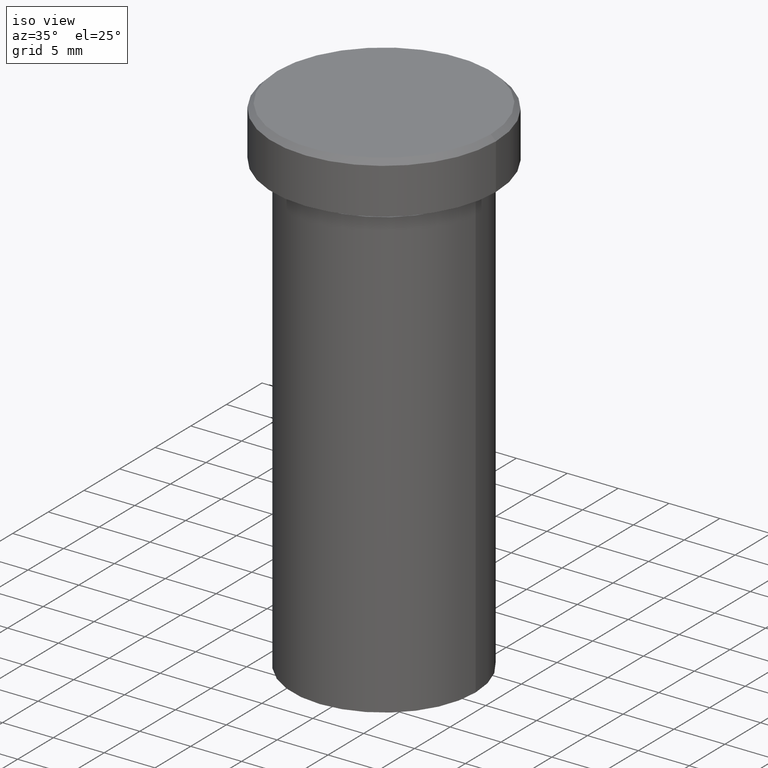
[diagram: clean part render]
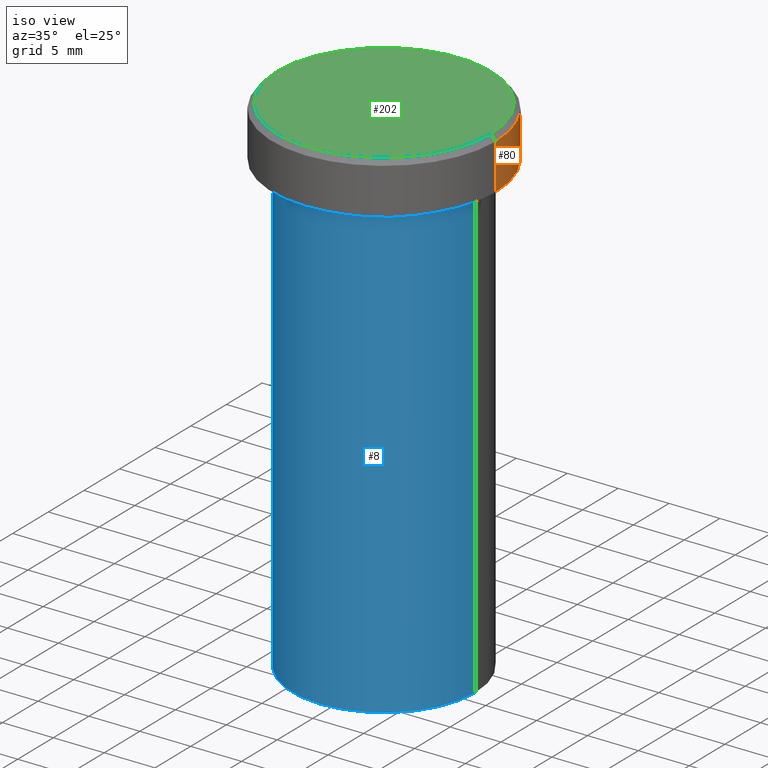
[diagram: same view with three faces highlighted in distinct colors, each labeled with its STEP entity id]
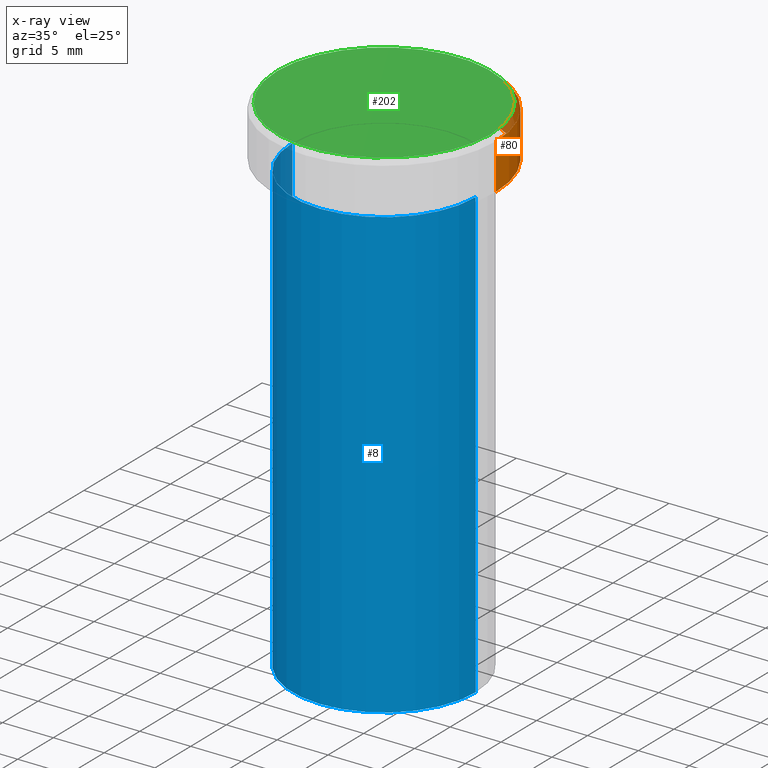
[diagram: x-ray of the same camera — body ghosted, the three highlighted faces saturated]
A machine part, iso view with three faces highlighted in distinct colors.
The next image is the same camera in x-ray (body ghosted, the three faces saturated) — at least one of them is partly hidden behind the body in this view.
Their STEP definitions:

[orange] entity #80 — the highlighted cylindrical surface (partial cylindrical patch) has radius 11 mm, axis along (-0, -0, 1).
#18 = CARTESIAN_POINT ( 'NONE',  ( 0.000000000000000000, 0.000000000000000000, 0.000000000000000000 ) ) ;
#20 = DIRECTION ( 'NONE',  ( -0.000000000000000000, -0.000000000000000000, 1.000000000000000000 ) ) ;
#29 = CARTESIAN_POINT ( 'NONE',  ( 0.000000000000000000, 0.000000000000000000, -5.000000000000000000 ) ) ;
#30 = ORIENTED_EDGE ( 'NONE', *, *, #350, .T. ) ;
#33 = VERTEX_POINT ( 'NONE', #257 ) ;
#49 = FACE_OUTER_BOUND ( 'NONE', #392, .T. ) ;
#80 = ADVANCED_FACE ( 'NONE', ( #49 ), #173, .T. ) ;
#85 = EDGE_CURVE ( 'NONE', #222, #33, #332, .T. ) ;
#87 = CARTESIAN_POINT ( 'NONE',  ( 11.00000000000000000, 0.000000000000000000, -5.000000000000000000 ) ) ;
#90 = DIRECTION ( 'NONE',  ( 1.000000000000000000, 0.000000000000000000, 0.000000000000000000 ) ) ;
#94 = CIRCLE ( 'NONE', #304, 11.00000000000000000 ) ;
#140 = EDGE_CURVE ( 'NONE', #308, #33, #94, .T. ) ;
#145 = DIRECTION ( 'NONE',  ( -0.000000000000000000, -0.000000000000000000, 1.000000000000000000 ) ) ;
#173 = CYLINDRICAL_SURFACE ( 'NONE', #217, 11.00000000000000000 ) ;
#182 = LINE ( 'NONE', #185, #353 ) ;
#185 = CARTESIAN_POINT ( 'NONE',  ( -11.00000000000000000, 1.347111479062088405E-15, 0.000000000000000000 ) ) ;
#217 = AXIS2_PLACEMENT_3D ( 'NONE', #18, #20, #225 ) ;
#222 = VERTEX_POINT ( 'NONE', #87 ) ;
#225 = DIRECTION ( 'NONE',  ( 1.000000000000000000, 0.000000000000000000, 0.000000000000000000 ) ) ;
#233 = DIRECTION ( 'NONE',  ( -0.000000000000000000, -0.000000000000000000, 1.000000000000000000 ) ) ;
#237 = CIRCLE ( 'NONE', #246, 11.00000000000000000 ) ;
#244 = CARTESIAN_POINT ( 'NONE',  ( -11.00000000000000000, 1.347111479062088405E-15, -0.5000000000000073275 ) ) ;
#246 = AXIS2_PLACEMENT_3D ( 'NONE', #29, #145, #90 ) ;
#257 = CARTESIAN_POINT ( 'NONE',  ( 11.00000000000000000, 0.000000000000000000, -0.5000000000000073275 ) ) ;
#262 = DIRECTION ( 'NONE',  ( 1.000000000000000000, 0.000000000000000000, 0.000000000000000000 ) ) ;
#291 = VECTOR ( 'NONE', #361, 1000.000000000000000 ) ;
#296 = CARTESIAN_POINT ( 'NONE',  ( 11.00000000000000000, 0.000000000000000000, 0.000000000000000000 ) ) ;
#304 = AXIS2_PLACEMENT_3D ( 'NONE', #376, #311, #262 ) ;
#308 = VERTEX_POINT ( 'NONE', #244 ) ;
#311 = DIRECTION ( 'NONE',  ( 0.000000000000000000, 0.000000000000000000, -1.000000000000000000 ) ) ;
#317 = ORIENTED_EDGE ( 'NONE', *, *, #140, .T. ) ;
#318 = CARTESIAN_POINT ( 'NONE',  ( -11.00000000000000000, 1.347111479062088405E-15, -5.000000000000000000 ) ) ;
#324 = EDGE_CURVE ( 'NONE', #375, #308, #182, .T. ) ;
#332 = LINE ( 'NONE', #296, #291 ) ;
#339 = ORIENTED_EDGE ( 'NONE', *, *, #85, .F. ) ;
#350 = EDGE_CURVE ( 'NONE', #222, #375, #237, .T. ) ;
#353 = VECTOR ( 'NONE', #233, 1000.000000000000000 ) ;
#357 = ORIENTED_EDGE ( 'NONE', *, *, #324, .T. ) ;
#361 = DIRECTION ( 'NONE',  ( -0.000000000000000000, -0.000000000000000000, 1.000000000000000000 ) ) ;
#375 = VERTEX_POINT ( 'NONE', #318 ) ;
#376 = CARTESIAN_POINT ( 'NONE',  ( 0.000000000000000000, 0.000000000000000000, -0.5000000000000073275 ) ) ;
#392 = EDGE_LOOP ( 'NONE', ( #30, #357, #317, #339 ) ) ;

[blue] entity #8 — the highlighted cylindrical surface (partial cylindrical patch) has radius 9 mm, axis along (-0, -0, 1).
#4 = AXIS2_PLACEMENT_3D ( 'NONE', #290, #17, #165 ) ;
#5 = CARTESIAN_POINT ( 'NONE',  ( -9.000000000000000000, 1.102182119232617714E-15, 0.000000000000000000 ) ) ;
#8 = ADVANCED_FACE ( 'NONE', ( #398 ), #195, .T. ) ;
#9 = CIRCLE ( 'NONE', #394, 9.000000000000000000 ) ;
#17 = DIRECTION ( 'NONE',  ( -0.000000000000000000, -0.000000000000000000, 1.000000000000000000 ) ) ;
#26 = VECTOR ( 'NONE', #340, 1000.000000000000000 ) ;
#41 = EDGE_LOOP ( 'NONE', ( #61, #243, #355, #352 ) ) ;
#52 = CARTESIAN_POINT ( 'NONE',  ( -9.000000000000000000, 1.102182119232617714E-15, -50.00000000000000000 ) ) ;
#61 = ORIENTED_EDGE ( 'NONE', *, *, #256, .F. ) ;
#68 = VECTOR ( 'NONE', #116, 1000.000000000000000 ) ;
#72 = VERTEX_POINT ( 'NONE', #52 ) ;
#95 = CARTESIAN_POINT ( 'NONE',  ( -9.000000000000000000, 1.102182119232617714E-15, -6.000000000000000000 ) ) ;
#116 = DIRECTION ( 'NONE',  ( -0.000000000000000000, -0.000000000000000000, 1.000000000000000000 ) ) ;
#125 = LINE ( 'NONE', #5, #68 ) ;
#148 = CARTESIAN_POINT ( 'NONE',  ( 0.000000000000000000, 0.000000000000000000, -50.00000000000000000 ) ) ;
#152 = DIRECTION ( 'NONE',  ( -0.000000000000000000, -0.000000000000000000, 1.000000000000000000 ) ) ;
#161 = CARTESIAN_POINT ( 'NONE',  ( 9.000000000000000000, 0.000000000000000000, -6.000000000000000000 ) ) ;
#165 = DIRECTION ( 'NONE',  ( 1.000000000000000000, 0.000000000000000000, 0.000000000000000000 ) ) ;
#195 = CYLINDRICAL_SURFACE ( 'NONE', #4, 9.000000000000000000 ) ;
#211 = CARTESIAN_POINT ( 'NONE',  ( 9.000000000000000000, 0.000000000000000000, 0.000000000000000000 ) ) ;
#214 = VERTEX_POINT ( 'NONE', #95 ) ;
#230 = AXIS2_PLACEMENT_3D ( 'NONE', #276, #235, #378 ) ;
#232 = EDGE_CURVE ( 'NONE', #72, #283, #9, .T. ) ;
#235 = DIRECTION ( 'NONE',  ( -0.000000000000000000, -0.000000000000000000, 1.000000000000000000 ) ) ;
#240 = CARTESIAN_POINT ( 'NONE',  ( 9.000000000000000000, 0.000000000000000000, -50.00000000000000000 ) ) ;
#243 = ORIENTED_EDGE ( 'NONE', *, *, #232, .T. ) ;
#250 = EDGE_CURVE ( 'NONE', #214, #388, #390, .T. ) ;
#256 = EDGE_CURVE ( 'NONE', #72, #214, #125, .T. ) ;
#276 = CARTESIAN_POINT ( 'NONE',  ( 0.000000000000000000, 0.000000000000000000, -6.000000000000000000 ) ) ;
#283 = VERTEX_POINT ( 'NONE', #240 ) ;
#290 = CARTESIAN_POINT ( 'NONE',  ( 0.000000000000000000, 0.000000000000000000, 0.000000000000000000 ) ) ;
#295 = EDGE_CURVE ( 'NONE', #283, #388, #384, .T. ) ;
#338 = DIRECTION ( 'NONE',  ( 1.000000000000000000, 0.000000000000000000, 0.000000000000000000 ) ) ;
#340 = DIRECTION ( 'NONE',  ( -0.000000000000000000, -0.000000000000000000, 1.000000000000000000 ) ) ;
#352 = ORIENTED_EDGE ( 'NONE', *, *, #250, .F. ) ;
#355 = ORIENTED_EDGE ( 'NONE', *, *, #295, .T. ) ;
#378 = DIRECTION ( 'NONE',  ( 1.000000000000000000, 0.000000000000000000, 0.000000000000000000 ) ) ;
#384 = LINE ( 'NONE', #211, #26 ) ;
#388 = VERTEX_POINT ( 'NONE', #161 ) ;
#390 = CIRCLE ( 'NONE', #230, 9.000000000000000000 ) ;
#394 = AXIS2_PLACEMENT_3D ( 'NONE', #148, #152, #338 ) ;
#398 = FACE_OUTER_BOUND ( 'NONE', #41, .T. ) ;

[green] entity #202 — the highlighted planar face has unit normal (0, -0, 1).
#14 = AXIS2_PLACEMENT_3D ( 'NONE', #205, #86, #337 ) ;
#59 = DIRECTION ( 'NONE',  ( -0.000000000000000000, -0.000000000000000000, 1.000000000000000000 ) ) ;
#86 = DIRECTION ( 'NONE',  ( -0.000000000000000000, -0.000000000000000000, 1.000000000000000000 ) ) ;
#122 = CARTESIAN_POINT ( 'NONE',  ( 10.49999999999999467, 1.316495309083404420E-15, 0.000000000000000000 ) ) ;
#142 = CARTESIAN_POINT ( 'NONE',  ( 0.000000000000000000, 0.000000000000000000, 0.000000000000000000 ) ) ;
#143 = CIRCLE ( 'NONE', #14, 10.49999999999999467 ) ;
#184 = DIRECTION ( 'NONE',  ( 1.000000000000000000, 0.000000000000000000, 0.000000000000000000 ) ) ;
#186 = EDGE_CURVE ( 'NONE', #323, #351, #143, .T. ) ;
#192 = EDGE_CURVE ( 'NONE', #351, #323, #363, .T. ) ;
#202 = ADVANCED_FACE ( 'NONE', ( #266 ), #210, .T. ) ;
#205 = CARTESIAN_POINT ( 'NONE',  ( 0.000000000000000000, 0.000000000000000000, 0.000000000000000000 ) ) ;
#210 = PLANE ( 'NONE',  #400 ) ;
#259 = AXIS2_PLACEMENT_3D ( 'NONE', #142, #59, #184 ) ;
#266 = FACE_OUTER_BOUND ( 'NONE', #312, .T. ) ;
#280 = ORIENTED_EDGE ( 'NONE', *, *, #186, .T. ) ;
#306 = DIRECTION ( 'NONE',  ( 1.000000000000000000, 0.000000000000000000, 0.000000000000000000 ) ) ;
#309 = CARTESIAN_POINT ( 'NONE',  ( 0.000000000000000000, 0.000000000000000000, 0.000000000000000000 ) ) ;
#312 = EDGE_LOOP ( 'NONE', ( #280, #316 ) ) ;
#316 = ORIENTED_EDGE ( 'NONE', *, *, #192, .T. ) ;
#323 = VERTEX_POINT ( 'NONE', #335 ) ;
#335 = CARTESIAN_POINT ( 'NONE',  ( -10.49999999999999467, 0.000000000000000000, 0.000000000000000000 ) ) ;
#337 = DIRECTION ( 'NONE',  ( 1.000000000000000000, 0.000000000000000000, 0.000000000000000000 ) ) ;
#351 = VERTEX_POINT ( 'NONE', #122 ) ;
#363 = CIRCLE ( 'NONE', #259, 10.49999999999999467 ) ;
#374 = DIRECTION ( 'NONE',  ( 0.000000000000000000, -0.000000000000000000, 1.000000000000000000 ) ) ;
#400 = AXIS2_PLACEMENT_3D ( 'NONE', #309, #374, #306 ) ;